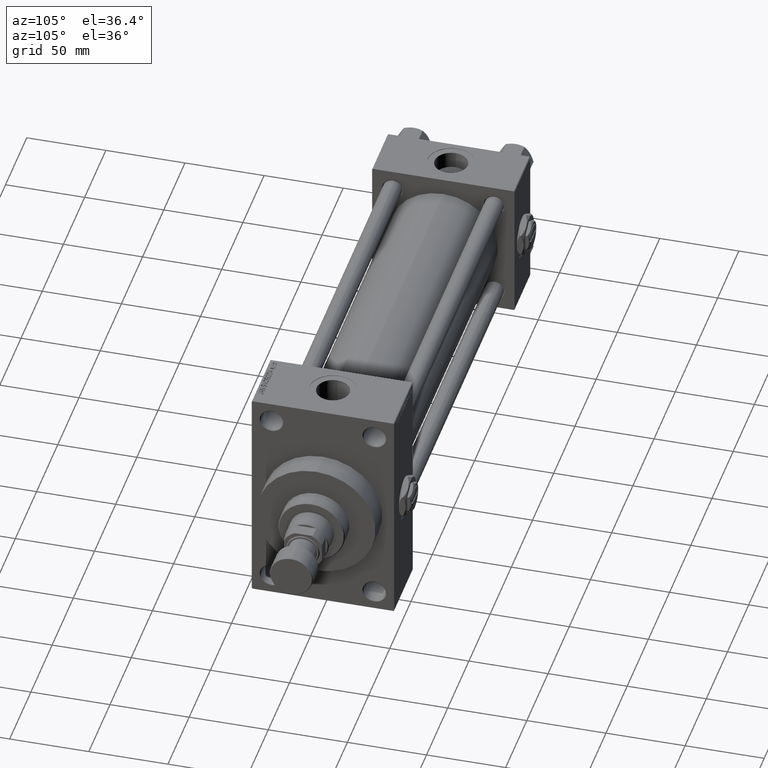
[diagram: clean part render]
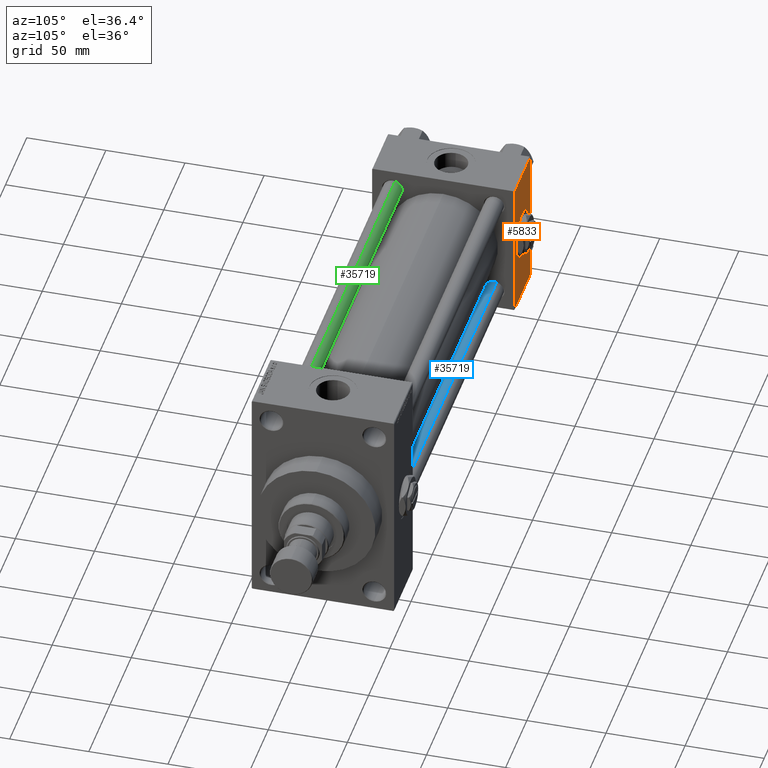
[diagram: same view with three faces highlighted in distinct colors, each labeled with its STEP entity id]
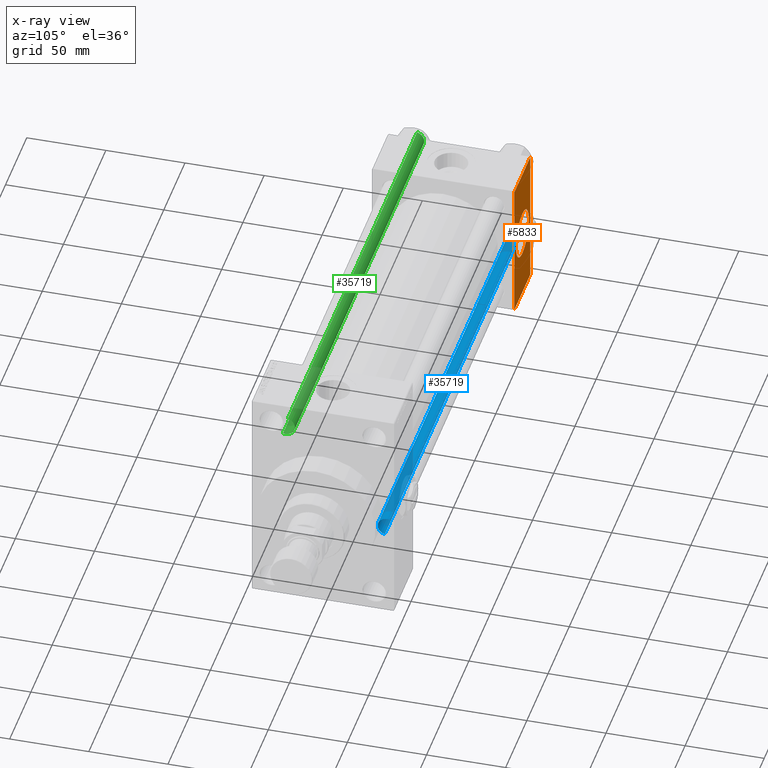
[diagram: x-ray of the same camera — body ghosted, the three highlighted faces saturated]
A machine part, auxiliary view with three faces highlighted in distinct colors.
The next image is the same camera in x-ray (body ghosted, the three faces saturated) — at least one of them is partly hidden behind the body in this view.
Their STEP definitions:

[orange] entity #5833 — the highlighted planar face has unit normal (0, 1, 0).
#2251 = CARTESIAN_POINT ( 'NONE',  ( 18.50000000000000000, 44.99999999999998579, 0.000000000000000000 ) ) ;
#2481 = EDGE_CURVE ( 'NONE', #47749, #15852, #20815, .T. ) ;
#2935 = CARTESIAN_POINT ( 'NONE',  ( 37.00000000000000000, 44.99999999999998579, -44.49999999999995737 ) ) ;
#5833 = ADVANCED_FACE ( 'NONE', ( #31293, #16688 ), #24267, .T. ) ;
#7598 = ORIENTED_EDGE ( 'NONE', *, *, #2481, .T. ) ;
#7778 = EDGE_CURVE ( 'NONE', #42256, #47749, #34962, .T. ) ;
#7964 = EDGE_LOOP ( 'NONE', ( #7598, #44254, #31828, #25039 ) ) ;
#8750 = EDGE_CURVE ( 'NONE', #35778, #34105, #45904, .T. ) ;
#9421 = ORIENTED_EDGE ( 'NONE', *, *, #8750, .F. ) ;
#9970 = DIRECTION ( 'NONE',  ( 0.000000000000000000, 0.000000000000000000, 1.000000000000000000 ) ) ;
#10547 = EDGE_LOOP ( 'NONE', ( #48987, #9421 ) ) ;
#11925 = CARTESIAN_POINT ( 'NONE',  ( 37.00000000000000000, 44.99999999999998579, 45.00000000000001421 ) ) ;
#12178 = DIRECTION ( 'NONE',  ( -0.000000000000000000, 1.000000000000000000, 0.000000000000000000 ) ) ;
#12419 = DIRECTION ( 'NONE',  ( 0.000000000000000000, -0.000000000000000000, 1.000000000000000000 ) ) ;
#12643 = CIRCLE ( 'NONE', #43179, 15.00000000000000178 ) ;
#13571 = VECTOR ( 'NONE', #49322, 1000.000000000000000 ) ;
#13974 = DIRECTION ( 'NONE',  ( 0.000000000000000000, 1.000000000000000000, 0.000000000000000000 ) ) ;
#14232 = CARTESIAN_POINT ( 'NONE',  ( 0.000000000000000000, 44.99999999999998579, 45.00000000000001421 ) ) ;
#15839 = CARTESIAN_POINT ( 'NONE',  ( 37.00000000000000000, 44.99999999999998579, 44.50000000000001421 ) ) ;
#15852 = VERTEX_POINT ( 'NONE', #2935 ) ;
#16590 = DIRECTION ( 'NONE',  ( 0.000000000000000000, 1.000000000000000000, 0.000000000000000000 ) ) ;
#16688 = FACE_OUTER_BOUND ( 'NONE', #7964, .T. ) ;
#16885 = AXIS2_PLACEMENT_3D ( 'NONE', #11925, #12178, #12419 ) ;
#18356 = VECTOR ( 'NONE', #27605, 1000.000000000000000 ) ;
#18543 = CARTESIAN_POINT ( 'NONE',  ( 18.50000000000000000, 44.99999999999998579, 15.00000000000000178 ) ) ;
#18621 = CARTESIAN_POINT ( 'NONE',  ( 37.00000000000000000, 44.99999999999998579, -44.49999999999998579 ) ) ;
#18687 = CARTESIAN_POINT ( 'NONE',  ( 18.50000000000000355, 44.99999999999998579, -15.00000000000000178 ) ) ;
#19402 = AXIS2_PLACEMENT_3D ( 'NONE', #2251, #16590, #31940 ) ;
#19627 = CARTESIAN_POINT ( 'NONE',  ( 37.00000000000000000, 44.99999999999998579, 44.50000000000001421 ) ) ;
#20392 = EDGE_CURVE ( 'NONE', #34105, #35778, #12643, .T. ) ;
#20815 = LINE ( 'NONE', #47974, #18356 ) ;
#21025 = CARTESIAN_POINT ( 'NONE',  ( 0.000000000000000000, 44.99999999999998579, -44.49999999999995737 ) ) ;
#21536 = CARTESIAN_POINT ( 'NONE',  ( 18.50000000000000000, 44.99999999999998579, 0.000000000000000000 ) ) ;
#22403 = LINE ( 'NONE', #18621, #13571 ) ;
#22473 = VECTOR ( 'NONE', #25566, 1000.000000000000000 ) ;
#24267 = PLANE ( 'NONE',  #16885 ) ;
#24694 = EDGE_CURVE ( 'NONE', #15852, #29481, #22403, .T. ) ;
#25039 = ORIENTED_EDGE ( 'NONE', *, *, #7778, .T. ) ;
#25566 = DIRECTION ( 'NONE',  ( 0.000000000000000000, 0.000000000000000000, -1.000000000000000000 ) ) ;
#26207 = EDGE_CURVE ( 'NONE', #42256, #29481, #48718, .T. ) ;
#27605 = DIRECTION ( 'NONE',  ( 0.000000000000000000, 0.000000000000000000, -1.000000000000000000 ) ) ;
#29481 = VERTEX_POINT ( 'NONE', #21025 ) ;
#31190 = DIRECTION ( 'NONE',  ( 1.000000000000000000, 0.000000000000000000, 0.000000000000000000 ) ) ;
#31293 = FACE_BOUND ( 'NONE', #10547, .T. ) ;
#31828 = ORIENTED_EDGE ( 'NONE', *, *, #26207, .F. ) ;
#31940 = DIRECTION ( 'NONE',  ( 0.000000000000000000, 0.000000000000000000, 1.000000000000000000 ) ) ;
#31993 = CARTESIAN_POINT ( 'NONE',  ( 0.000000000000000000, 44.99999999999998579, 44.50000000000001421 ) ) ;
#34105 = VERTEX_POINT ( 'NONE', #18543 ) ;
#34962 = LINE ( 'NONE', #15839, #45059 ) ;
#35778 = VERTEX_POINT ( 'NONE', #18687 ) ;
#42256 = VERTEX_POINT ( 'NONE', #31993 ) ;
#43179 = AXIS2_PLACEMENT_3D ( 'NONE', #21536, #13974, #9970 ) ;
#44254 = ORIENTED_EDGE ( 'NONE', *, *, #24694, .T. ) ;
#45059 = VECTOR ( 'NONE', #31190, 1000.000000000000000 ) ;
#45904 = CIRCLE ( 'NONE', #19402, 15.00000000000000178 ) ;
#47749 = VERTEX_POINT ( 'NONE', #19627 ) ;
#47974 = CARTESIAN_POINT ( 'NONE',  ( 37.00000000000000000, 44.99999999999998579, 45.00000000000001421 ) ) ;
#48718 = LINE ( 'NONE', #14232, #22473 ) ;
#48987 = ORIENTED_EDGE ( 'NONE', *, *, #20392, .F. ) ;
#49322 = DIRECTION ( 'NONE',  ( -1.000000000000000000, 0.000000000000000000, 0.000000000000000000 ) ) ;

[blue] entity #35719 — the highlighted cylindrical surface (edge-blend (fillet) strip) has radius 6 mm, axis along (1, -0, 0).
#147 = CARTESIAN_POINT ( 'NONE',  ( -6.000000000000000888, 0.000000000000000000, 0.5000000000000004441 ) ) ;
#165 = VERTEX_POINT ( 'NONE', #20367 ) ;
#1651 = CIRCLE ( 'NONE', #7273, 6.000000000000000888 ) ;
#1705 = EDGE_CURVE ( 'NONE', #165, #24337, #31218, .T. ) ;
#4801 = CARTESIAN_POINT ( 'NONE',  ( 6.000000000000000888, 7.347880794884120722E-16, 306.0000000000000000 ) ) ;
#4917 = CARTESIAN_POINT ( 'NONE',  ( 0.000000000000000000, 0.000000000000000000, 306.0000000000000000 ) ) ;
#6025 = EDGE_CURVE ( 'NONE', #12165, #42049, #1651, .T. ) ;
#7273 = AXIS2_PLACEMENT_3D ( 'NONE', #34507, #30734, #49127 ) ;
#11132 = AXIS2_PLACEMENT_3D ( 'NONE', #20053, #17011, #28344 ) ;
#11920 = ORIENTED_EDGE ( 'NONE', *, *, #12028, .T. ) ;
#12028 = EDGE_CURVE ( 'NONE', #24337, #12165, #31626, .T. ) ;
#12165 = VERTEX_POINT ( 'NONE', #147 ) ;
#12697 = FACE_OUTER_BOUND ( 'NONE', #20095, .T. ) ;
#14877 = ORIENTED_EDGE ( 'NONE', *, *, #37835, .F. ) ;
#16283 = CARTESIAN_POINT ( 'NONE',  ( -6.000000000000000888, 0.000000000000000000, 306.0000000000000000 ) ) ;
#17011 = DIRECTION ( 'NONE',  ( 0.000000000000000000, 0.000000000000000000, -1.000000000000000000 ) ) ;
#17202 = CYLINDRICAL_SURFACE ( 'NONE', #49229, 6.000000000000000888 ) ;
#20053 = CARTESIAN_POINT ( 'NONE',  ( 0.000000000000000000, 0.000000000000000000, 305.5000000000000000 ) ) ;
#20095 = EDGE_LOOP ( 'NONE', ( #14877, #38042, #11920, #36501 ) ) ;
#20147 = DIRECTION ( 'NONE',  ( -0.000000000000000000, -0.000000000000000000, -1.000000000000000000 ) ) ;
#20258 = DIRECTION ( 'NONE',  ( -0.000000000000000000, -0.000000000000000000, -1.000000000000000000 ) ) ;
#20367 = CARTESIAN_POINT ( 'NONE',  ( 6.000000000000000888, 7.347880794884120722E-16, 305.5000000000000000 ) ) ;
#24102 = DIRECTION ( 'NONE',  ( -0.000000000000000000, -0.000000000000000000, -1.000000000000000000 ) ) ;
#24337 = VERTEX_POINT ( 'NONE', #45359 ) ;
#24526 = DIRECTION ( 'NONE',  ( -1.000000000000000000, 0.000000000000000000, 0.000000000000000000 ) ) ;
#28344 = DIRECTION ( 'NONE',  ( 1.000000000000000000, 0.000000000000000000, 0.000000000000000000 ) ) ;
#30734 = DIRECTION ( 'NONE',  ( -0.000000000000000000, -0.000000000000000000, 1.000000000000000000 ) ) ;
#31218 = CIRCLE ( 'NONE', #11132, 6.000000000000000888 ) ;
#31626 = LINE ( 'NONE', #16283, #48630 ) ;
#32382 = VECTOR ( 'NONE', #20147, 1000.000000000000000 ) ;
#34507 = CARTESIAN_POINT ( 'NONE',  ( 0.000000000000000000, 0.000000000000000000, 0.5000000000000004441 ) ) ;
#35719 = ADVANCED_FACE ( 'NONE', ( #12697 ), #17202, .T. ) ;
#36501 = ORIENTED_EDGE ( 'NONE', *, *, #6025, .T. ) ;
#37835 = EDGE_CURVE ( 'NONE', #165, #42049, #39256, .T. ) ;
#38042 = ORIENTED_EDGE ( 'NONE', *, *, #1705, .T. ) ;
#39256 = LINE ( 'NONE', #4801, #32382 ) ;
#42049 = VERTEX_POINT ( 'NONE', #44615 ) ;
#44615 = CARTESIAN_POINT ( 'NONE',  ( 6.000000000000000888, 7.347880794884120722E-16, 0.5000000000000004441 ) ) ;
#45359 = CARTESIAN_POINT ( 'NONE',  ( -6.000000000000000888, 0.000000000000000000, 305.5000000000000000 ) ) ;
#48630 = VECTOR ( 'NONE', #24102, 1000.000000000000000 ) ;
#49127 = DIRECTION ( 'NONE',  ( 1.000000000000000000, 0.000000000000000000, 0.000000000000000000 ) ) ;
#49229 = AXIS2_PLACEMENT_3D ( 'NONE', #4917, #20258, #24526 ) ;

[green] entity #35719 — the highlighted cylindrical surface (edge-blend (fillet) strip) has radius 6 mm, axis along (1, 0, 0).
#147 = CARTESIAN_POINT ( 'NONE',  ( -6.000000000000000888, 0.000000000000000000, 0.5000000000000004441 ) ) ;
#165 = VERTEX_POINT ( 'NONE', #20367 ) ;
#1651 = CIRCLE ( 'NONE', #7273, 6.000000000000000888 ) ;
#1705 = EDGE_CURVE ( 'NONE', #165, #24337, #31218, .T. ) ;
#4801 = CARTESIAN_POINT ( 'NONE',  ( 6.000000000000000888, 7.347880794884120722E-16, 306.0000000000000000 ) ) ;
#4917 = CARTESIAN_POINT ( 'NONE',  ( 0.000000000000000000, 0.000000000000000000, 306.0000000000000000 ) ) ;
#6025 = EDGE_CURVE ( 'NONE', #12165, #42049, #1651, .T. ) ;
#7273 = AXIS2_PLACEMENT_3D ( 'NONE', #34507, #30734, #49127 ) ;
#11132 = AXIS2_PLACEMENT_3D ( 'NONE', #20053, #17011, #28344 ) ;
#11920 = ORIENTED_EDGE ( 'NONE', *, *, #12028, .T. ) ;
#12028 = EDGE_CURVE ( 'NONE', #24337, #12165, #31626, .T. ) ;
#12165 = VERTEX_POINT ( 'NONE', #147 ) ;
#12697 = FACE_OUTER_BOUND ( 'NONE', #20095, .T. ) ;
#14877 = ORIENTED_EDGE ( 'NONE', *, *, #37835, .F. ) ;
#16283 = CARTESIAN_POINT ( 'NONE',  ( -6.000000000000000888, 0.000000000000000000, 306.0000000000000000 ) ) ;
#17011 = DIRECTION ( 'NONE',  ( 0.000000000000000000, 0.000000000000000000, -1.000000000000000000 ) ) ;
#17202 = CYLINDRICAL_SURFACE ( 'NONE', #49229, 6.000000000000000888 ) ;
#20053 = CARTESIAN_POINT ( 'NONE',  ( 0.000000000000000000, 0.000000000000000000, 305.5000000000000000 ) ) ;
#20095 = EDGE_LOOP ( 'NONE', ( #14877, #38042, #11920, #36501 ) ) ;
#20147 = DIRECTION ( 'NONE',  ( -0.000000000000000000, -0.000000000000000000, -1.000000000000000000 ) ) ;
#20258 = DIRECTION ( 'NONE',  ( -0.000000000000000000, -0.000000000000000000, -1.000000000000000000 ) ) ;
#20367 = CARTESIAN_POINT ( 'NONE',  ( 6.000000000000000888, 7.347880794884120722E-16, 305.5000000000000000 ) ) ;
#24102 = DIRECTION ( 'NONE',  ( -0.000000000000000000, -0.000000000000000000, -1.000000000000000000 ) ) ;
#24337 = VERTEX_POINT ( 'NONE', #45359 ) ;
#24526 = DIRECTION ( 'NONE',  ( -1.000000000000000000, 0.000000000000000000, 0.000000000000000000 ) ) ;
#28344 = DIRECTION ( 'NONE',  ( 1.000000000000000000, 0.000000000000000000, 0.000000000000000000 ) ) ;
#30734 = DIRECTION ( 'NONE',  ( -0.000000000000000000, -0.000000000000000000, 1.000000000000000000 ) ) ;
#31218 = CIRCLE ( 'NONE', #11132, 6.000000000000000888 ) ;
#31626 = LINE ( 'NONE', #16283, #48630 ) ;
#32382 = VECTOR ( 'NONE', #20147, 1000.000000000000000 ) ;
#34507 = CARTESIAN_POINT ( 'NONE',  ( 0.000000000000000000, 0.000000000000000000, 0.5000000000000004441 ) ) ;
#35719 = ADVANCED_FACE ( 'NONE', ( #12697 ), #17202, .T. ) ;
#36501 = ORIENTED_EDGE ( 'NONE', *, *, #6025, .T. ) ;
#37835 = EDGE_CURVE ( 'NONE', #165, #42049, #39256, .T. ) ;
#38042 = ORIENTED_EDGE ( 'NONE', *, *, #1705, .T. ) ;
#39256 = LINE ( 'NONE', #4801, #32382 ) ;
#42049 = VERTEX_POINT ( 'NONE', #44615 ) ;
#44615 = CARTESIAN_POINT ( 'NONE',  ( 6.000000000000000888, 7.347880794884120722E-16, 0.5000000000000004441 ) ) ;
#45359 = CARTESIAN_POINT ( 'NONE',  ( -6.000000000000000888, 0.000000000000000000, 305.5000000000000000 ) ) ;
#48630 = VECTOR ( 'NONE', #24102, 1000.000000000000000 ) ;
#49127 = DIRECTION ( 'NONE',  ( 1.000000000000000000, 0.000000000000000000, 0.000000000000000000 ) ) ;
#49229 = AXIS2_PLACEMENT_3D ( 'NONE', #4917, #20258, #24526 ) ;